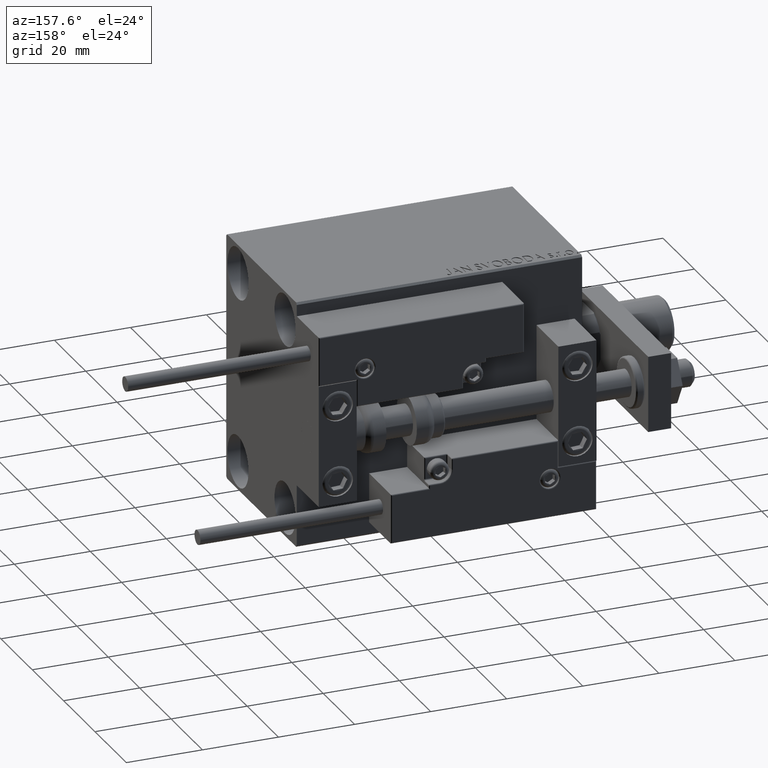
[diagram: clean part render]
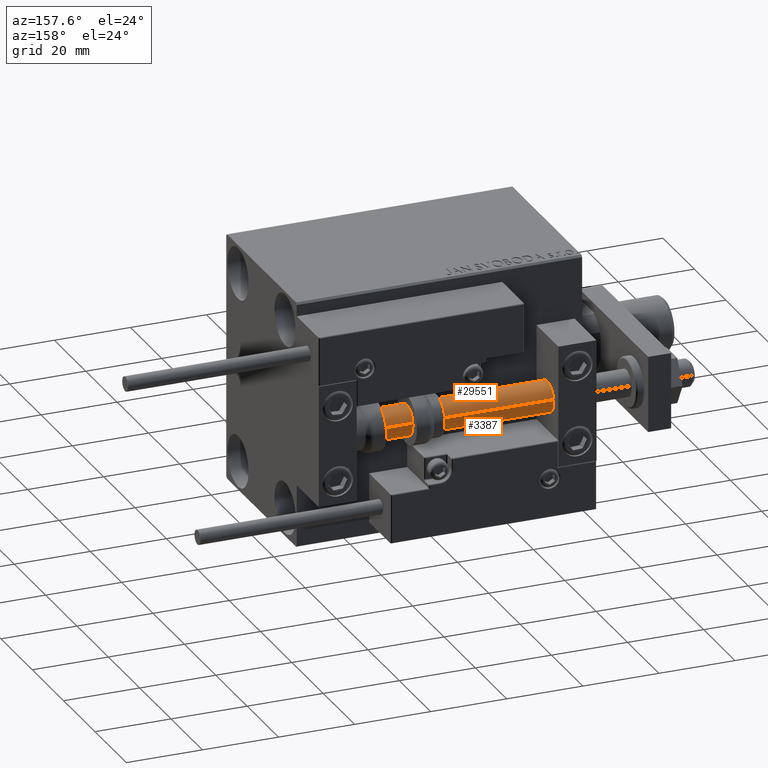
[diagram: same view with one multi-face feature highlighted, each face labeled with its STEP entity id]
A machine part, auxiliary view. The highlighted faces form ONE feature: a constant-radius fillet chain: 2 tangent blend faces with common blend radius 4 mm. The faces share edges in the B-rep.
Their STEP definitions:
[1] entity #3387 (Cylinder):
#1792 = ORIENTED_EDGE ( 'NONE', *, *, #16063, .T. ) ;
#3387 = ADVANCED_FACE ( 'NONE', ( #19613 ), #49939, .T. ) ;
#3785 = DIRECTION ( 'NONE',  ( 1.000000000000000000, 0.000000000000000000, 0.000000000000000000 ) ) ;
#5743 = DIRECTION ( 'NONE',  ( 1.000000000000000000, 0.000000000000000000, 0.000000000000000000 ) ) ;
#6820 = CARTESIAN_POINT ( 'NONE',  ( 0.000000000000000000, 0.000000000000000000, 75.00000000000000000 ) ) ;
#8033 = DIRECTION ( 'NONE',  ( -0.000000000000000000, -0.000000000000000000, -1.000000000000000000 ) ) ;
#10888 = VERTEX_POINT ( 'NONE', #12410 ) ;
#11999 = CIRCLE ( 'NONE', #15268, 4.000000000000000000 ) ;
#12410 = CARTESIAN_POINT ( 'NONE',  ( -4.000000000000000000, 0.000000000000000000, 75.00000000000000000 ) ) ;
#15268 = AXIS2_PLACEMENT_3D ( 'NONE', #38684, #22800, #3785 ) ;
#15561 = ORIENTED_EDGE ( 'NONE', *, *, #23408, .F. ) ;
#16063 = EDGE_CURVE ( 'NONE', #10888, #17123, #16996, .T. ) ;
#16996 = LINE ( 'NONE', #40840, #36465 ) ;
#17123 = VERTEX_POINT ( 'NONE', #17195 ) ;
#17195 = CARTESIAN_POINT ( 'NONE',  ( -4.000000000000000000, 0.000000000000000000, 2.000000000000029310 ) ) ;
#18179 = VERTEX_POINT ( 'NONE', #30610 ) ;
#18742 = CARTESIAN_POINT ( 'NONE',  ( 4.000000000000000000, 4.898587196589412829E-16, 2.000000000000029310 ) ) ;
#18847 = EDGE_CURVE ( 'NONE', #10888, #18179, #11999, .T. ) ;
#19106 = DIRECTION ( 'NONE',  ( -1.000000000000000000, 0.000000000000000000, 0.000000000000000000 ) ) ;
#19613 = FACE_OUTER_BOUND ( 'NONE', #41859, .T. ) ;
#21288 = ORIENTED_EDGE ( 'NONE', *, *, #18847, .F. ) ;
#22265 = EDGE_CURVE ( 'NONE', #17123, #34997, #23585, .T. ) ;
#22672 = CARTESIAN_POINT ( 'NONE',  ( 4.000000000000000000, 4.898587196589412829E-16, 75.00000000000000000 ) ) ;
#22800 = DIRECTION ( 'NONE',  ( 0.000000000000000000, 0.000000000000000000, 1.000000000000000000 ) ) ;
#23408 = EDGE_CURVE ( 'NONE', #18179, #34997, #46516, .T. ) ;
#23585 = CIRCLE ( 'NONE', #32581, 4.000000000000000000 ) ;
#25726 = CARTESIAN_POINT ( 'NONE',  ( 0.000000000000000000, 0.000000000000000000, 2.000000000000029310 ) ) ;
#28306 = ORIENTED_EDGE ( 'NONE', *, *, #22265, .T. ) ;
#30610 = CARTESIAN_POINT ( 'NONE',  ( 4.000000000000000000, 4.898587196589412829E-16, 75.00000000000000000 ) ) ;
#32581 = AXIS2_PLACEMENT_3D ( 'NONE', #25726, #41377, #5743 ) ;
#34997 = VERTEX_POINT ( 'NONE', #18742 ) ;
#36465 = VECTOR ( 'NONE', #36735, 1000.000000000000000 ) ;
#36735 = DIRECTION ( 'NONE',  ( -0.000000000000000000, -0.000000000000000000, -1.000000000000000000 ) ) ;
#38358 = DIRECTION ( 'NONE',  ( -0.000000000000000000, -0.000000000000000000, -1.000000000000000000 ) ) ;
#38684 = CARTESIAN_POINT ( 'NONE',  ( 0.000000000000000000, 0.000000000000000000, 75.00000000000000000 ) ) ;
#40840 = CARTESIAN_POINT ( 'NONE',  ( -4.000000000000000000, 0.000000000000000000, 75.00000000000000000 ) ) ;
#41377 = DIRECTION ( 'NONE',  ( -0.000000000000000000, -0.000000000000000000, 1.000000000000000000 ) ) ;
#41859 = EDGE_LOOP ( 'NONE', ( #15561, #21288, #1792, #28306 ) ) ;
#46516 = LINE ( 'NONE', #22672, #47381 ) ;
#47285 = AXIS2_PLACEMENT_3D ( 'NONE', #6820, #38358, #19106 ) ;
#47381 = VECTOR ( 'NONE', #8033, 1000.000000000000000 ) ;
#49939 = CYLINDRICAL_SURFACE ( 'NONE', #47285, 4.000000000000000000 ) ;
[2] entity #29551 (Cylinder):
#1087 = DIRECTION ( 'NONE',  ( 0.000000000000000000, 0.000000000000000000, 1.000000000000000000 ) ) ;
#3663 = EDGE_LOOP ( 'NONE', ( #41696, #40696, #31506, #10570 ) ) ;
#4345 = CYLINDRICAL_SURFACE ( 'NONE', #34354, 4.000000000000000000 ) ;
#4859 = CARTESIAN_POINT ( 'NONE',  ( 0.000000000000000000, 0.000000000000000000, 75.00000000000000000 ) ) ;
#5837 = DIRECTION ( 'NONE',  ( 1.000000000000000000, 0.000000000000000000, 0.000000000000000000 ) ) ;
#8033 = DIRECTION ( 'NONE',  ( -0.000000000000000000, -0.000000000000000000, -1.000000000000000000 ) ) ;
#8712 = DIRECTION ( 'NONE',  ( -0.000000000000000000, -0.000000000000000000, -1.000000000000000000 ) ) ;
#9433 = CARTESIAN_POINT ( 'NONE',  ( 0.000000000000000000, 0.000000000000000000, 2.000000000000029310 ) ) ;
#10570 = ORIENTED_EDGE ( 'NONE', *, *, #16063, .F. ) ;
#10888 = VERTEX_POINT ( 'NONE', #12410 ) ;
#12410 = CARTESIAN_POINT ( 'NONE',  ( -4.000000000000000000, 0.000000000000000000, 75.00000000000000000 ) ) ;
#16063 = EDGE_CURVE ( 'NONE', #10888, #17123, #16996, .T. ) ;
#16402 = DIRECTION ( 'NONE',  ( -1.000000000000000000, 0.000000000000000000, 0.000000000000000000 ) ) ;
#16985 = DIRECTION ( 'NONE',  ( 1.000000000000000000, 0.000000000000000000, 0.000000000000000000 ) ) ;
#16996 = LINE ( 'NONE', #40840, #36465 ) ;
#17123 = VERTEX_POINT ( 'NONE', #17195 ) ;
#17195 = CARTESIAN_POINT ( 'NONE',  ( -4.000000000000000000, 0.000000000000000000, 2.000000000000029310 ) ) ;
#18179 = VERTEX_POINT ( 'NONE', #30610 ) ;
#18742 = CARTESIAN_POINT ( 'NONE',  ( 4.000000000000000000, 4.898587196589412829E-16, 2.000000000000029310 ) ) ;
#20328 = CIRCLE ( 'NONE', #21981, 4.000000000000000000 ) ;
#21981 = AXIS2_PLACEMENT_3D ( 'NONE', #44181, #1087, #16985 ) ;
#22672 = CARTESIAN_POINT ( 'NONE',  ( 4.000000000000000000, 4.898587196589412829E-16, 75.00000000000000000 ) ) ;
#23408 = EDGE_CURVE ( 'NONE', #18179, #34997, #46516, .T. ) ;
#23572 = EDGE_CURVE ( 'NONE', #18179, #10888, #20328, .T. ) ;
#24813 = DIRECTION ( 'NONE',  ( -0.000000000000000000, -0.000000000000000000, 1.000000000000000000 ) ) ;
#29551 = ADVANCED_FACE ( 'NONE', ( #39741 ), #4345, .T. ) ;
#30610 = CARTESIAN_POINT ( 'NONE',  ( 4.000000000000000000, 4.898587196589412829E-16, 75.00000000000000000 ) ) ;
#31506 = ORIENTED_EDGE ( 'NONE', *, *, #33390, .T. ) ;
#33390 = EDGE_CURVE ( 'NONE', #34997, #17123, #49227, .T. ) ;
#34354 = AXIS2_PLACEMENT_3D ( 'NONE', #4859, #8712, #16402 ) ;
#34997 = VERTEX_POINT ( 'NONE', #18742 ) ;
#36465 = VECTOR ( 'NONE', #36735, 1000.000000000000000 ) ;
#36735 = DIRECTION ( 'NONE',  ( -0.000000000000000000, -0.000000000000000000, -1.000000000000000000 ) ) ;
#39741 = FACE_OUTER_BOUND ( 'NONE', #3663, .T. ) ;
#40696 = ORIENTED_EDGE ( 'NONE', *, *, #23408, .T. ) ;
#40840 = CARTESIAN_POINT ( 'NONE',  ( -4.000000000000000000, 0.000000000000000000, 75.00000000000000000 ) ) ;
#41696 = ORIENTED_EDGE ( 'NONE', *, *, #23572, .F. ) ;
#44181 = CARTESIAN_POINT ( 'NONE',  ( 0.000000000000000000, 0.000000000000000000, 75.00000000000000000 ) ) ;
#46516 = LINE ( 'NONE', #22672, #47381 ) ;
#47381 = VECTOR ( 'NONE', #8033, 1000.000000000000000 ) ;
#47590 = AXIS2_PLACEMENT_3D ( 'NONE', #9433, #24813, #5837 ) ;
#49227 = CIRCLE ( 'NONE', #47590, 4.000000000000000000 ) ;